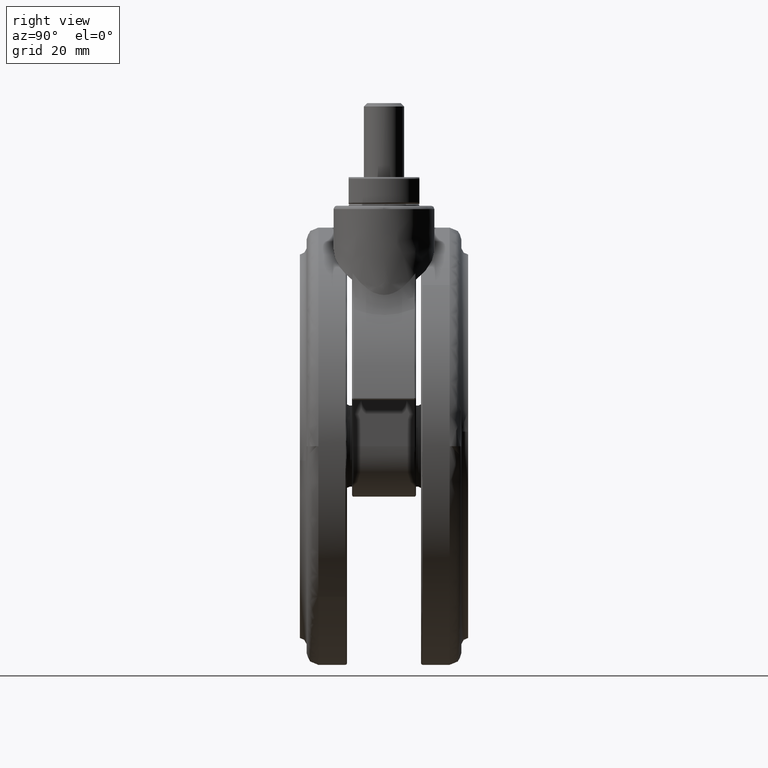
[diagram: clean part render]
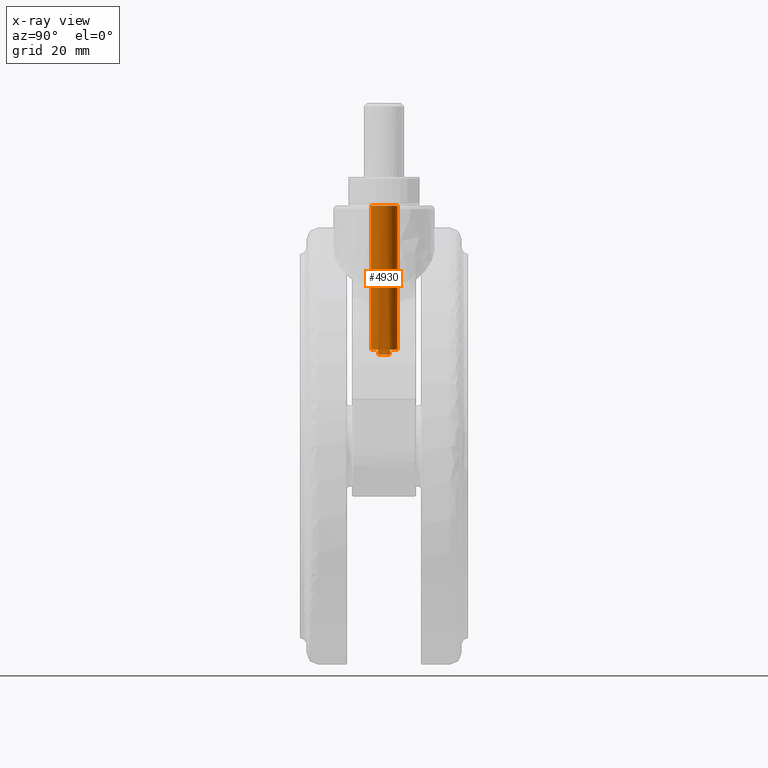
[diagram: x-ray — body ghosted, one internal face saturated and labeled with its STEP entity id]
A machine part, right view, then the same camera in x-ray: the body is ghosted and one INTERNAL B-rep face — a face not visible from any outside direction — is saturated and labeled: STEP entity #4930.
In plain terms, the highlighted face is a freeform B-spline surface patch.
Its self-contained STEP definition (entity closure, byte-faithful):
#4772=CARTESIAN_POINT('',(-0.865758455892939,3.905184028448629,-2.220446E-016));
#4773=VERTEX_POINT('',#4772);
#4787=CARTESIAN_POINT('',(0.865758455892485,-3.905184028448629,-2.220446E-016));
#4788=VERTEX_POINT('',#4787);
#4804=CARTESIAN_POINT('',(3.999999999999773,0.0,0.0));
#4805=VERTEX_POINT('',#4804);
#4806=CARTESIAN_POINT('',(3.999999999999773,0.0,0.0));
#4807=CARTESIAN_POINT('',(3.999999999999772,-3.210339406568140,0.0));
#4808=CARTESIAN_POINT('',(0.865758455892484,-3.905184028448629,0.0));
#4816=(BOUNDED_CURVE()B_SPLINE_CURVE(2,(#4806,#4807,#4808),.UNSPECIFIED.,.F.,.U.)B_SPLINE_CURVE_WITH_KNOTS((3,3),(0.500000000000000,0.712959885323618),.UNSPECIFIED.)CURVE()GEOMETRIC_REPRESENTATION_ITEM()RATIONAL_B_SPLINE_CURVE((1.0,0.750501974837687,0.926068516291657))REPRESENTATION_ITEM(''));
#4817=EDGE_CURVE('',#4805,#4788,#4816,.T.);
#4819=CARTESIAN_POINT('',(-0.865758455892940,3.905184028448629,0.0));
#4820=CARTESIAN_POINT('',(-0.438071246805909,4.000000000000000,0.0));
#4821=CARTESIAN_POINT('',(-2.273737E-013,4.0,0.0));
#4822=CARTESIAN_POINT('',(3.999999999999773,4.000000000000000,0.0));
#4823=CARTESIAN_POINT('',(3.999999999999773,0.0,0.0));
#4831=(BOUNDED_CURVE()B_SPLINE_CURVE(2,(#4819,#4820,#4821,#4822,#4823),.UNSPECIFIED.,.F.,.U.)B_SPLINE_CURVE_WITH_KNOTS((3,2,3),(0.212959885323618,0.250000000000000,0.500000000000000),.UNSPECIFIED.)CURVE()GEOMETRIC_REPRESENTATION_ITEM()RATIONAL_B_SPLINE_CURVE((0.926068516291657,0.956604806348860,1.0,0.707106781186548,1.0))REPRESENTATION_ITEM(''));
#4832=EDGE_CURVE('',#4773,#4805,#4831,.T.);
#4837=CARTESIAN_POINT('',(0.865758455752184,-3.905184028479732,-45.407500000000013));
#4838=CARTESIAN_POINT('',(4.770942484231916,-3.039425572727322,-45.407499999999999));
#4839=CARTESIAN_POINT('',(3.905184028479505,0.865758455752411,-45.407500000000013));
#4840=CARTESIAN_POINT('',(3.039425572727093,4.770942484232143,-45.407499999999999));
#4841=CARTESIAN_POINT('',(-0.865758455752639,3.905184028479732,-45.407500000000013));
#4842=CARTESIAN_POINT('',(0.865758455752184,-3.905184028479732,1.135187500000001));
#4843=CARTESIAN_POINT('',(4.770942484231916,-3.039425572727322,1.135187500000001));
#4844=CARTESIAN_POINT('',(3.905184028479505,0.865758455752411,1.135187500000001));
#4845=CARTESIAN_POINT('',(3.039425572727093,4.770942484232143,1.135187500000001));
#4846=CARTESIAN_POINT('',(-0.865758455752639,3.905184028479732,1.135187500000001));
#4854=(BOUNDED_SURFACE()B_SPLINE_SURFACE(2,1,((#4837,#4842),(#4838,#4843),(#4839,#4844),(#4840,#4845),(#4841,#4846)),.UNSPECIFIED.,.F.,.F.,.U.)B_SPLINE_SURFACE_WITH_KNOTS((3,2,3),(2,2),(0.0,6.627416997969519,13.254833995939039),(0.0,46.542687500000007),.UNSPECIFIED.)GEOMETRIC_REPRESENTATION_ITEM()RATIONAL_B_SPLINE_SURFACE(((1.0,1.0),(0.707106781186548,0.707106781186548),(1.0,1.0),(0.707106781186548,0.707106781186548),(1.0,1.0)))REPRESENTATION_ITEM('')SURFACE());
#4855=CARTESIAN_POINT('',(0.865758455795018,-3.905184028470237,-42.799999999999997));
#4856=VERTEX_POINT('',#4855);
#4857=CARTESIAN_POINT('',(3.596873642484310,-1.750000000000000,-42.799999999999997));
#4858=VERTEX_POINT('',#4857);
#4859=CARTESIAN_POINT('',(0.865758455795018,-3.905184028470238,-42.799999999999983));
#4860=CARTESIAN_POINT('',(2.751728453106782,-3.487074546139798,-42.799999999999997));
#4861=CARTESIAN_POINT('',(3.596873642484312,-1.750000000000001,-42.799999999999997));
#4869=(BOUNDED_CURVE()B_SPLINE_CURVE(2,(#4859,#4860,#4861),.UNSPECIFIED.,.F.,.U.)B_SPLINE_CURVE_WITH_KNOTS((3,3),(0.834101468146514,1.0),.UNSPECIFIED.)CURVE()GEOMETRIC_REPRESENTATION_ITEM()RATIONAL_B_SPLINE_CURVE((0.902872869841714,0.855639960426911,1.0))REPRESENTATION_ITEM(''));
#4870=EDGE_CURVE('',#4856,#4858,#4869,.T.);
#4871=ORIENTED_EDGE('',*,*,#4870,.T.);
#4872=CARTESIAN_POINT('',(3.596873642484310,-1.750000000000000,-44.299999999999997));
#4873=VERTEX_POINT('',#4872);
#4874=CARTESIAN_POINT('',(3.596873642484310,-1.750000000000000,-44.299999999999997));
#4875=CARTESIAN_POINT('',(3.596873642484310,-1.750000000000000,-42.799999999999997));
#4876=QUASI_UNIFORM_CURVE('',1,(#4874,#4875),.UNSPECIFIED.,.F.,.U.);
#4877=EDGE_CURVE('',#4873,#4858,#4876,.T.);
#4878=ORIENTED_EDGE('',*,*,#4877,.F.);
#4879=CARTESIAN_POINT('',(3.596873642484315,1.750000000000000,-44.299999999999997));
#4880=VERTEX_POINT('',#4879);
#4881=CARTESIAN_POINT('',(3.596873642484313,1.749999999999999,-44.299999999999997));
#4882=CARTESIAN_POINT('',(4.448307499884034,-4.336809E-016,-44.300000000000004));
#4883=CARTESIAN_POINT('',(3.596873642484313,-1.750000000000000,-44.299999999999997));
#4891=(BOUNDED_CURVE()B_SPLINE_CURVE(2,(#4881,#4882,#4883),.UNSPECIFIED.,.F.,.U.)CURVE()GEOMETRIC_REPRESENTATION_ITEM()QUASI_UNIFORM_CURVE()RATIONAL_B_SPLINE_CURVE((1.0,0.899218410621135,1.0))REPRESENTATION_ITEM(''));
#4892=EDGE_CURVE('',#4880,#4873,#4891,.T.);
#4893=ORIENTED_EDGE('',*,*,#4892,.F.);
#4894=CARTESIAN_POINT('',(3.596873642484315,1.750000000000000,-42.799999999999997));
#4895=VERTEX_POINT('',#4894);
#4896=CARTESIAN_POINT('',(3.596873642484315,1.750000000000000,-44.299999999999997));
#4897=CARTESIAN_POINT('',(3.596873642484315,1.750000000000000,-42.799999999999997));
#4898=QUASI_UNIFORM_CURVE('',1,(#4896,#4897),.UNSPECIFIED.,.F.,.U.);
#4899=EDGE_CURVE('',#4880,#4895,#4898,.T.);
#4900=ORIENTED_EDGE('',*,*,#4899,.T.);
#4901=CARTESIAN_POINT('',(-0.865758455173706,3.905184028608079,-42.799999999999997));
#4902=VERTEX_POINT('',#4901);
#4903=CARTESIAN_POINT('',(3.596873642484313,1.749999999999999,-42.799999999999997));
#4904=CARTESIAN_POINT('',(2.215909533908042,4.588373373345803,-42.800000000000004));
#4905=CARTESIAN_POINT('',(-0.865758455173706,3.905184028608080,-42.799999999999990));
#4913=(BOUNDED_CURVE()B_SPLINE_CURVE(2,(#4903,#4904,#4905),.UNSPECIFIED.,.F.,.U.)B_SPLINE_CURVE_WITH_KNOTS((3,3),(0.0,0.248347863584293),.UNSPECIFIED.)CURVE()GEOMETRIC_REPRESENTATION_ITEM()RATIONAL_B_SPLINE_CURVE((1.0,0.783894968723514,0.997143720065686))REPRESENTATION_ITEM(''));
#4914=EDGE_CURVE('',#4895,#4902,#4913,.T.);
#4915=ORIENTED_EDGE('',*,*,#4914,.T.);
#4916=CARTESIAN_POINT('',(-0.865758455173706,3.905184028608079,-42.799999999999997));
#4917=CARTESIAN_POINT('',(-0.865758455892939,3.905184028448629,-2.220446E-016));
#4918=QUASI_UNIFORM_CURVE('',1,(#4916,#4917),.UNSPECIFIED.,.F.,.U.);
#4919=EDGE_CURVE('',#4902,#4773,#4918,.T.);
#4920=ORIENTED_EDGE('',*,*,#4919,.T.);
#4921=ORIENTED_EDGE('',*,*,#4832,.T.);
#4922=ORIENTED_EDGE('',*,*,#4817,.T.);
#4923=CARTESIAN_POINT('',(0.865758455795018,-3.905184028470237,-42.799999999999997));
#4924=CARTESIAN_POINT('',(0.865758455892485,-3.905184028448629,-2.220446E-016));
#4925=QUASI_UNIFORM_CURVE('',1,(#4923,#4924),.UNSPECIFIED.,.F.,.U.);
#4926=EDGE_CURVE('',#4856,#4788,#4925,.T.);
#4927=ORIENTED_EDGE('',*,*,#4926,.F.);
#4928=EDGE_LOOP('',(#4871,#4878,#4893,#4900,#4915,#4920,#4921,#4922,#4927));
#4929=FACE_OUTER_BOUND('',#4928,.T.);
#4930=ADVANCED_FACE('',(#4929),#4854,.T.);